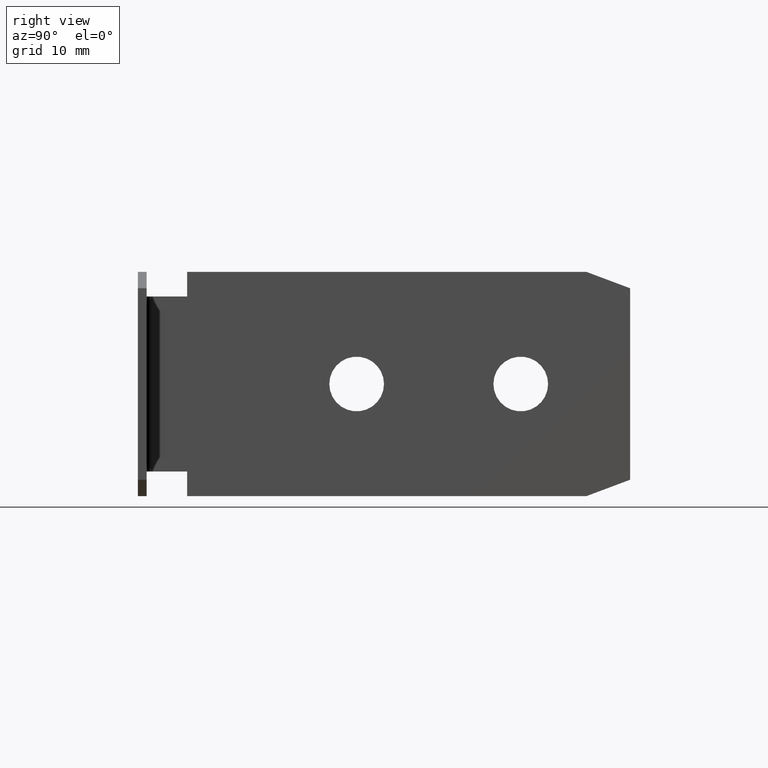
[diagram: clean part render]
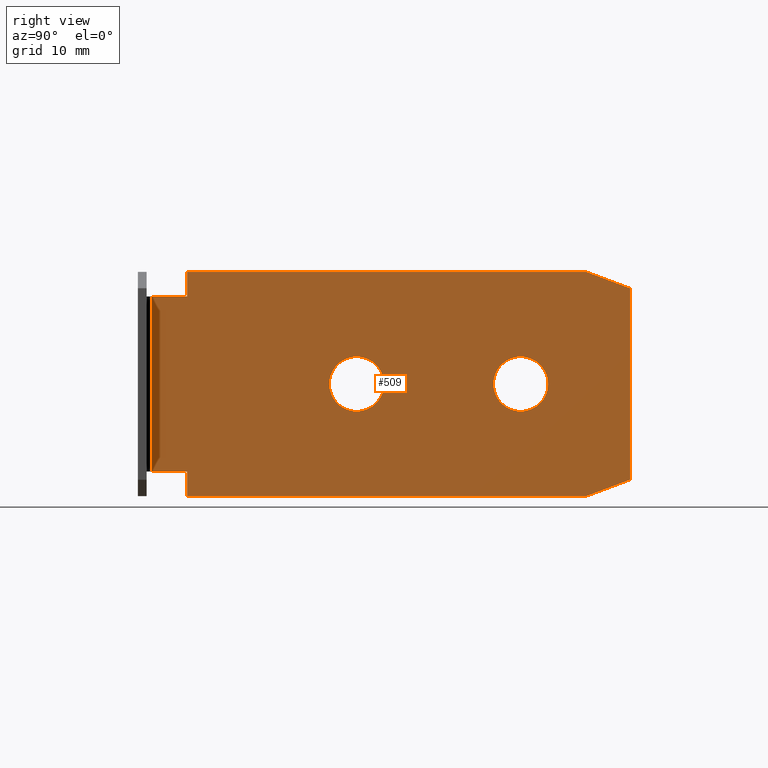
[diagram: same view with one face highlighted and labeled with its STEP entity id]
A machine part, right view. The second image highlights one B-rep face of the part: STEP entity #509.
In plain terms, the highlighted planar face has unit normal (-1, 0, 0).
Its self-contained STEP definition (entity closure, byte-faithful):
#17=FACE_BOUND('',#76,.T.);
#18=FACE_BOUND('',#77,.T.);
#25=PLANE('',#564);
#47=FACE_OUTER_BOUND('',#75,.T.);
#75=EDGE_LOOP('',(#383,#384,#385,#386,#387,#388,#389,#390,#391,#392));
#76=EDGE_LOOP('',(#393));
#77=EDGE_LOOP('',(#394));
#107=LINE('',#746,#167);
#119=LINE('',#776,#179);
#121=LINE('',#782,#181);
#122=LINE('',#784,#182);
#123=LINE('',#786,#183);
#124=LINE('',#788,#184);
#125=LINE('',#790,#185);
#126=LINE('',#792,#186);
#127=LINE('',#794,#187);
#128=LINE('',#795,#188);
#167=VECTOR('',#606,10.);
#179=VECTOR('',#628,10.);
#181=VECTOR('',#634,10.);
#182=VECTOR('',#635,10.);
#183=VECTOR('',#636,10.);
#184=VECTOR('',#637,10.);
#185=VECTOR('',#638,10.);
#186=VECTOR('',#639,10.);
#187=VECTOR('',#640,10.);
#188=VECTOR('',#641,10.);
#229=CIRCLE('',#565,2.5);
#230=CIRCLE('',#566,2.5);
#240=VERTEX_POINT('',#743);
#241=VERTEX_POINT('',#745);
#254=VERTEX_POINT('',#775);
#256=VERTEX_POINT('',#781);
#257=VERTEX_POINT('',#783);
#258=VERTEX_POINT('',#785);
#259=VERTEX_POINT('',#787);
#260=VERTEX_POINT('',#789);
#261=VERTEX_POINT('',#791);
#262=VERTEX_POINT('',#793);
#263=VERTEX_POINT('',#796);
#264=VERTEX_POINT('',#798);
#289=EDGE_CURVE('',#241,#240,#107,.T.);
#304=EDGE_CURVE('',#241,#254,#119,.T.);
#307=EDGE_CURVE('',#240,#256,#121,.T.);
#308=EDGE_CURVE('',#257,#256,#122,.T.);
#309=EDGE_CURVE('',#257,#258,#123,.T.);
#310=EDGE_CURVE('',#259,#258,#124,.T.);
#311=EDGE_CURVE('',#259,#260,#125,.T.);
#312=EDGE_CURVE('',#261,#260,#126,.T.);
#313=EDGE_CURVE('',#261,#262,#127,.T.);
#314=EDGE_CURVE('',#262,#254,#128,.T.);
#315=EDGE_CURVE('',#263,#263,#229,.T.);
#316=EDGE_CURVE('',#264,#264,#230,.T.);
#383=ORIENTED_EDGE('',*,*,#304,.F.);
#384=ORIENTED_EDGE('',*,*,#289,.T.);
#385=ORIENTED_EDGE('',*,*,#307,.T.);
#386=ORIENTED_EDGE('',*,*,#308,.F.);
#387=ORIENTED_EDGE('',*,*,#309,.T.);
#388=ORIENTED_EDGE('',*,*,#310,.F.);
#389=ORIENTED_EDGE('',*,*,#311,.T.);
#390=ORIENTED_EDGE('',*,*,#312,.F.);
#391=ORIENTED_EDGE('',*,*,#313,.T.);
#392=ORIENTED_EDGE('',*,*,#314,.T.);
#393=ORIENTED_EDGE('',*,*,#315,.T.);
#394=ORIENTED_EDGE('',*,*,#316,.T.);
#509=ADVANCED_FACE('',(#47,#17,#18),#25,.F.);
#564=AXIS2_PLACEMENT_3D('',#780,#632,#633);
#565=AXIS2_PLACEMENT_3D('',#797,#642,#643);
#566=AXIS2_PLACEMENT_3D('',#799,#644,#645);
#606=DIRECTION('',(3.26899001695185E-16,1.,0.));
#628=DIRECTION('',(0.,0.,1.));
#632=DIRECTION('center_axis',(-1.,3.26899001695185E-16,0.));
#633=DIRECTION('ref_axis',(0.,0.,1.));
#634=DIRECTION('',(-4.83907731211963E-31,-1.48029736616687E-15,-1.));
#635=DIRECTION('',(-3.26899001695185E-16,-1.,0.));
#636=DIRECTION('',(3.06085073405394E-16,0.936329177569045,0.351123441588391));
#637=DIRECTION('',(0.,0.,-1.));
#638=DIRECTION('',(-3.06085073405394E-16,-0.936329177569045,0.351123441588391));
#639=DIRECTION('',(3.26899001695185E-16,1.,0.));
#640=DIRECTION('',(0.,0.,-1.));
#641=DIRECTION('',(-3.26899001695185E-16,-1.,2.46716227694479E-16));
#642=DIRECTION('center_axis',(-1.,3.26899001695185E-16,0.));
#643=DIRECTION('ref_axis',(3.94745964311167E-16,1.,0.));
#644=DIRECTION('center_axis',(-1.,3.26899001695185E-16,0.));
#645=DIRECTION('ref_axis',(3.94745964311167E-16,1.,0.));
#743=CARTESIAN_POINT('',(0.800000000000002,4.49999999999999,-8.));
#745=CARTESIAN_POINT('',(0.800000000000001,1.29999999999999,-8.));
#746=CARTESIAN_POINT('',(0.8,-8.29362876857631E-15,-8.));
#775=CARTESIAN_POINT('',(0.800000000000001,1.29999999999999,8.));
#776=CARTESIAN_POINT('',(0.800000000000001,1.29999999999999,0.));
#780=CARTESIAN_POINT('Origin',(0.8,-7.94919685631612E-15,0.));
#781=CARTESIAN_POINT('',(0.800000000000002,4.49999999999999,-10.25));
#782=CARTESIAN_POINT('',(0.800000000000002,4.5,-4.));
#783=CARTESIAN_POINT('',(0.800000000000014,41.,-10.25));
#784=CARTESIAN_POINT('',(0.8,-7.94919685631612E-15,-10.25));
#785=CARTESIAN_POINT('',(0.800000000000015,45.,-8.75));
#786=CARTESIAN_POINT('',(0.800000000000008,24.7123287671233,-16.3578767123288));
#787=CARTESIAN_POINT('',(0.800000000000015,45.,8.75));
#788=CARTESIAN_POINT('',(0.800000000000015,45.,0.));
#789=CARTESIAN_POINT('',(0.800000000000014,41.,10.25));
#790=CARTESIAN_POINT('',(0.800000000000009,26.7123287671233,15.6078767123288));
#791=CARTESIAN_POINT('',(0.800000000000002,4.49999999999999,10.25));
#792=CARTESIAN_POINT('',(0.8,-7.94919685631612E-15,10.25));
#793=CARTESIAN_POINT('',(0.800000000000002,4.49999999999999,8.));
#794=CARTESIAN_POINT('',(0.800000000000002,4.49999999999999,5.125));
#795=CARTESIAN_POINT('',(0.800000000000001,2.24999999999999,8.));
#796=CARTESIAN_POINT('',(0.800000000000003,17.5,-3.06151588455594E-16));
#797=CARTESIAN_POINT('Origin',(0.80000000000001,20.,0.));
#798=CARTESIAN_POINT('',(0.800000000000015,32.5,-3.06151588455594E-16));
#799=CARTESIAN_POINT('Origin',(0.800000000000018,35.,0.));